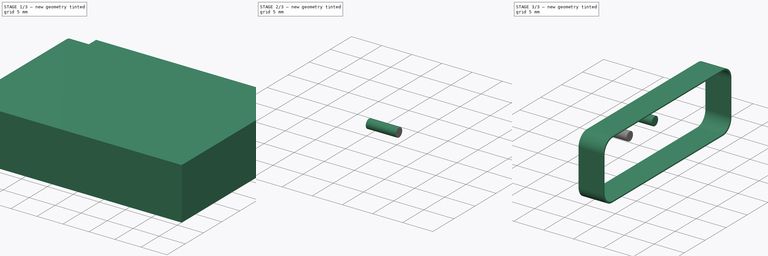
[diagram: build sequence overview — one tinted view per stage of 3, left to right]
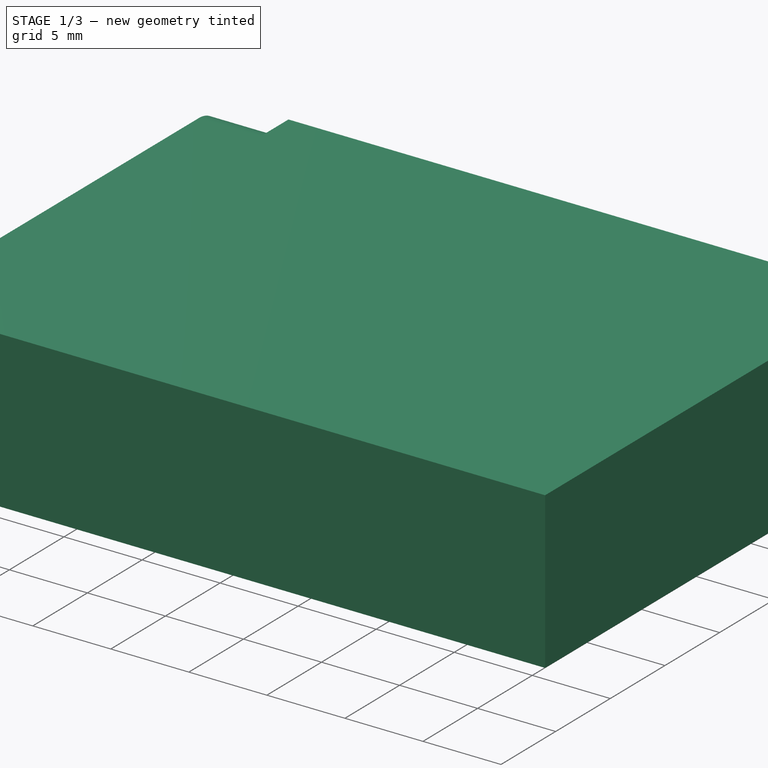
[diagram: stage 1 of 3 — iso view after this stage's code; geometry added in this stage tinted green]
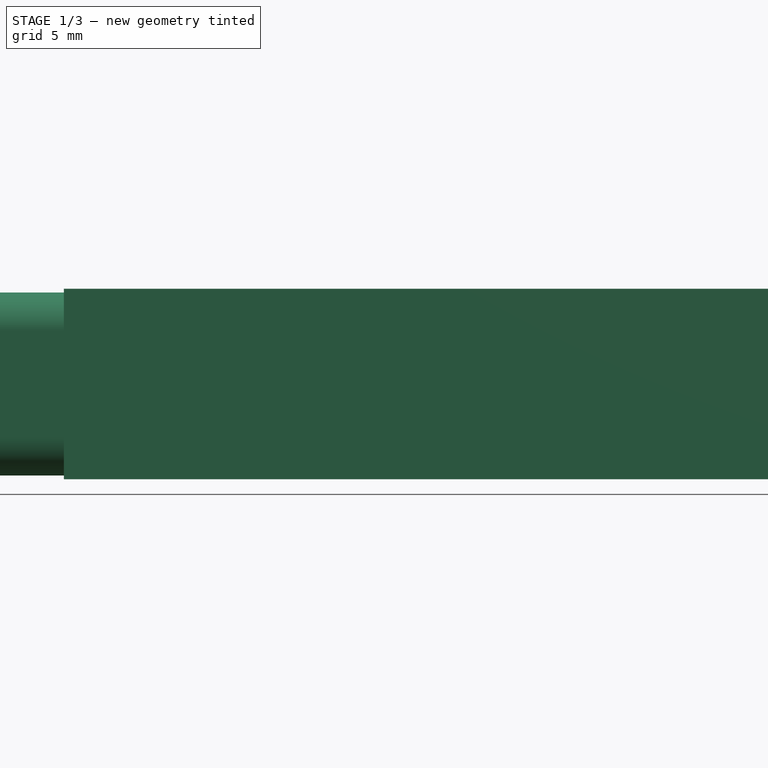
[diagram: stage 1 of 3 — front view after this stage's code; geometry added in this stage tinted green]
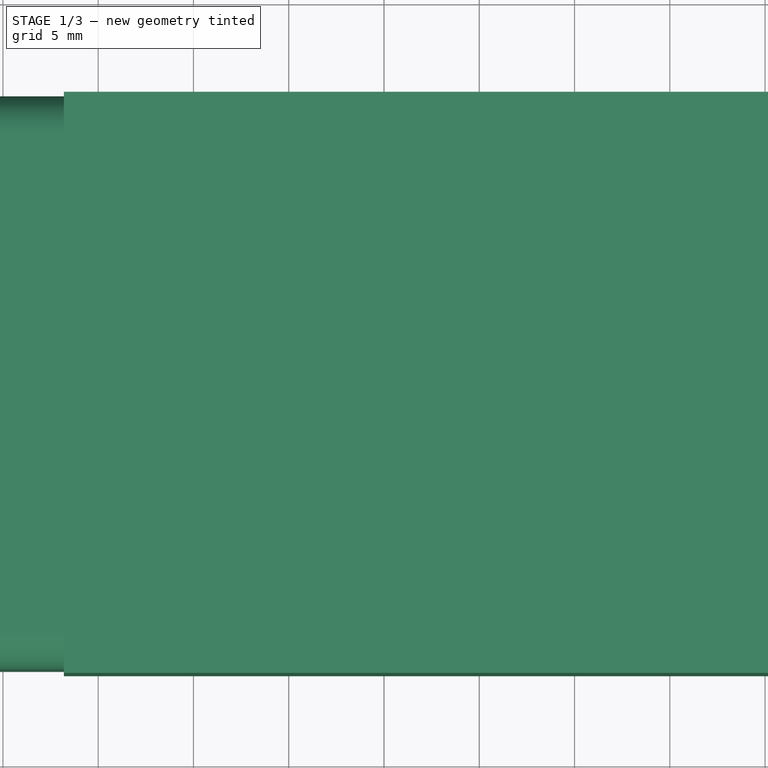
[diagram: stage 1 of 3 — top view after this stage's code; geometry added in this stage tinted green]
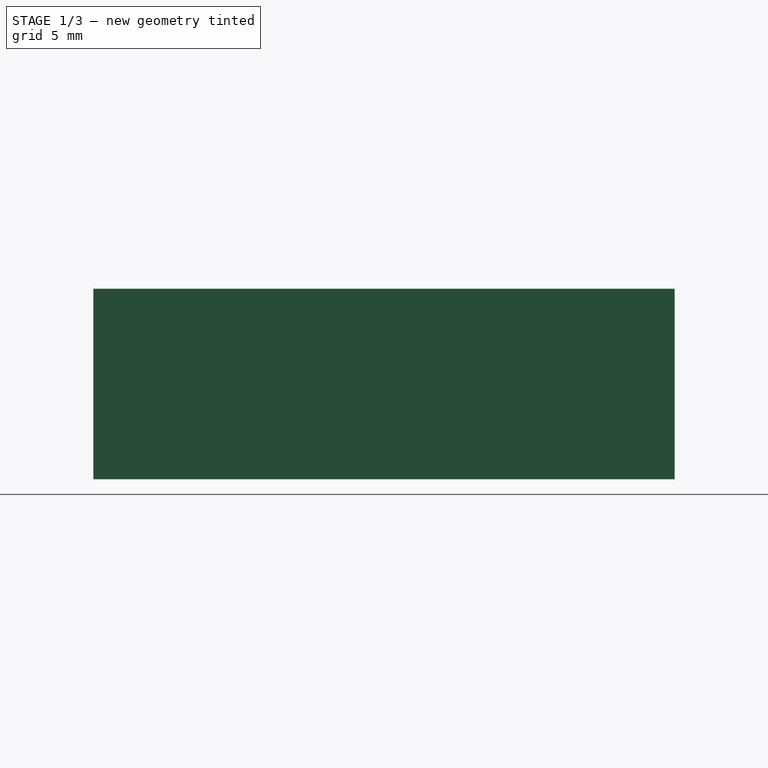
[diagram: stage 1 of 3 — right view after this stage's code; geometry added in this stage tinted green]
FCSTD DOCUMENT  (FreeCAD 0.21R30694 (Git))
Label: Parametric_LiPo
Comment: Don't forget to share your models
License: Creative Commons Attribution
LicenseURL: http://creativecommons.org/licenses/by/4.0/
objects: Sketcher::SketchObject×5, PartDesign::Pad×4, PartDesign::Body×4, PartDesign::ShapeBinder×3, PartDesign::Plane×3, Spreadsheet::Sheet×1, PartDesign::Pocket×1, PartDesign::Fillet×1, App::Part×1
note: 27 computed .brp shape members not serialized (recipe doc carries the construction recipe); baked Part::Feature solids carry a one-line shape summary decoded from their .brp

FEATURE [Spreadsheet::Sheet] Spreadsheet  label="Parameters"
  cells = A1=Collection of some sizes of rectangular LiPo batteries; A2=Data from: local supplier; A5=Configuration table; B5=Length; C5=Wide; D5=Height; E5=Round; F5=Celofan; A6==hiddenref(Part.Capacity.String); B6(LiPoLength)==.B12; C6(LiPoWide)==.C12; D6(LiPoHeight)==.D12; E6(LiPoRound)==.E12; F6(LiPoCelofan)==.F12; A7=130mAh; B7=32; C7=15.5; D7=3.5; E7==0.2 * D7; F7==0.1 * B7; A8=250mAh; B8=32; C8=20.5; D8=5; E8==0.2 * D8; F8==0.1 * B8; A9=400mAh; B9=37; C9=20.5; D9=6; E9==0.2 * D9; F9==0.1 * B9; A10=650mAh; B10=42; C10=20.5; D10=8; E10==0.2 * D10; F10==0.1 * B10; A11=1000mAh; B11=52; C11=34.5; D11=5; E11==0.2 * D11; F11==0.1 * B11; A12=1200mAh; B12=42; C12=30.5; D12=10; E12==0.2 * D12; F12==0.1 * B12; A13=1500mAh; B13=52; C13=30.5; D13=10; E13==0.2 * D13; F13==0.1 * B13; A14=2000mAh; B14=97.5; C14=33.5; D14=5; E14==0.2 * D14; F14==0.1 * B14; A15=2500mAh; B15=52; C15=40.5; D15=10; E15==0.2 * D15; F15==0.1 * B15; A16=4000mAh; B16=93; C16=60.5; D16=6; E16==0.2 * D16; F16==0.1 * B16; A17=5000mAh; B17=103; C17=60.5; D17=6; E17==0.2 * D17; F17==0.1 * B17
  expr: .cells.Bind.B6.F6 = tuple(.cells; <<B>> + str(hiddenref(Part.Capacity) + 7); <<F>> + str(hiddenref(Part.Capacity) + 7))
FEATURE [Sketcher::SketchObject] Sketch
  FullyConstrained = true
  MapMode = 5
  Support = -> [XY_Plane001]
  expr: Constraints[10] = <<Parameters>>.LiPoLength
  expr: Constraints[11] = <<Parameters>>.LiPoWide
  sketch-geometry (5):
    g0: LineSegment StartX=-21 StartY=15.25 StartZ=0 EndX=-21 EndY=-15.25 EndZ=0
    g1: LineSegment StartX=-21 StartY=-15.25 StartZ=0 EndX=21 EndY=-15.25 EndZ=0
    g2: LineSegment StartX=21 StartY=-15.25 StartZ=0 EndX=21 EndY=15.25 EndZ=0
    g3: LineSegment StartX=21 StartY=15.25 StartZ=0 EndX=-21 EndY=15.25 EndZ=0
    g4: GeomPoint X=0 Y=0 Z=0
  constraints (12):
    c: Coincident(g0,g1)
    c: Coincident(g1,g2)
    c: Coincident(g2,g3)
    c: Coincident(g3,g0)
    c: Horizontal(g1)
    c: Horizontal(g3)
    c: Vertical(g0)
    c: Vertical(g2)
    c: Symmetric(g1,g0,g4)
    c: Coincident(g4,g-1)
    c: DistanceX(g3,g3) = 42
    c: DistanceY(g2,g2) = 30.5
FEATURE [PartDesign::Pad] Pad
  Direction = (0,0,1)
  Length = 10
  Length2 = 100
  Midplane = true
  Profile = -> Sketch
  Type = 0
  expr: Length = <<Parameters>>.LiPoHeight
FEATURE [Sketcher::SketchObject] Sketch001
  ExternalGeometry = -> [Pad]
  FullyConstrained = true
  MapMode = 5
  Placement = pos=(-21,0,0) rot=(0.57735,-0.57735,-0.57735;2.0944rad)
  Support = -> [Pad]
  expr: Constraints[37] = <<Parameters>>.LiPoRound
  sketch-geometry (16):
    g0: LineSegment StartX=-15.25 StartY=5 StartZ=0 EndX=15.25 EndY=5 EndZ=0
    g1: LineSegment StartX=15.25 StartY=5 StartZ=0 EndX=15.25 EndY=-5 EndZ=0
    g2: LineSegment StartX=15.25 StartY=-5 StartZ=0 EndX=-15.25 EndY=-5 EndZ=0
    g3: LineSegment StartX=-15.25 StartY=-5 StartZ=0 EndX=-15.25 EndY=5 EndZ=0
    g4: LineSegment StartX=-13.05 StartY=4.8 StartZ=0 EndX=13.05 EndY=4.8 EndZ=0
    g5: LineSegment StartX=15.05 StartY=2.8 StartZ=0 EndX=15.05 EndY=-2.8 EndZ=0
    g6: LineSegment StartX=13.05 StartY=-4.8 StartZ=0 EndX=-13.05 EndY=-4.8 EndZ=0
    g7: LineSegment StartX=-15.05 StartY=-2.8 StartZ=0 EndX=-15.05 EndY=2.8 EndZ=0
    g8: ArcOfCircle CenterX=13.05 CenterY=2.8 CenterZ=0 NormalX=0 NormalY=0 NormalZ=1 AngleXU=0 Radius=2 StartAngle=0 EndAngle=1.5708
    g9: GeomPoint X=15.05 Y=4.8 Z=0
    g10: ArcOfCircle CenterX=-13.05 CenterY=2.8 CenterZ=0 NormalX=0 NormalY=0 NormalZ=1 AngleXU=0 Radius=2 StartAngle=1.5708 EndAngle=3.14159
    g11: GeomPoint X=-15.05 Y=4.8 Z=0
    g12: ArcOfCircle CenterX=-13.05 CenterY=-2.8 CenterZ=0 NormalX=0 NormalY=0 NormalZ=1 AngleXU=0 Radius=2 StartAngle=3.14159 EndAngle=4.71239
    g13: GeomPoint X=-15.05 Y=-4.8 Z=0
    g14: ArcOfCircle CenterX=13.05 CenterY=-2.8 CenterZ=0 NormalX=0 NormalY=0 NormalZ=1 AngleXU=0 Radius=2 StartAngle=4.71239 EndAngle=6.28319
    g15: GeomPoint X=15.05 Y=-4.8 Z=0
  constraints (38):
    c: Coincident(g0,g1)
    c: Coincident(g1,g2)
    c: Coincident(g2,g3)
    c: Coincident(g3,g0)
    c: Horizontal(g0)
    c: Horizontal(g2)
    c: Vertical(g1)
    c: Vertical(g3)
    c: Coincident(g0,g-3)
    c: Coincident(g1,g-4)
    c: Horizontal(g4)
    c: Horizontal(g6)
    c: Vertical(g5)
    c: Vertical(g7)
    c: DistanceX(g0,g11) = 0.2
    c: DistanceY(g2,g13) = 0.2
    c: DistanceY(g9,g0) = 0.2
    c: DistanceX(g15,g1) = 0.2
    c: PointOnObject(g9,g4)
    c: PointOnObject(g9,g5)
    c: Tangent(g4,g8) = 1.5708
    c: Tangent(g5,g8) = 1.5708
    c: PointOnObject(g11,g4)
    c: PointOnObject(g11,g7)
    c: Tangent(g4,g10) = 1.5708
    c: Tangent(g7,g10) = 1.5708
    c: PointOnObject(g13,g6)
    c: PointOnObject(g13,g7)
    c: Tangent(g6,g12) = 1.5708
    c: Tangent(g7,g12) = 1.5708
    c: PointOnObject(g15,g5)
    c: PointOnObject(g15,g6)
    c: Tangent(g5,g14) = 1.5708
    c: Tangent(g6,g14) = 1.5708
    c: Equal(g10,g12)
    c: Equal(g12,g8)
    c: Equal(g8,g14)
    c: Radius(g8) = 2
FEATURE [PartDesign::Pocket] Pocket
  BaseFeature = -> Pad
  Direction = (1,0,0)
  Length = 4.2
  Length2 = 100
  Profile = -> Sketch001
  Type = 0
  expr: Length = <<Parameters>>.LiPoCelofan
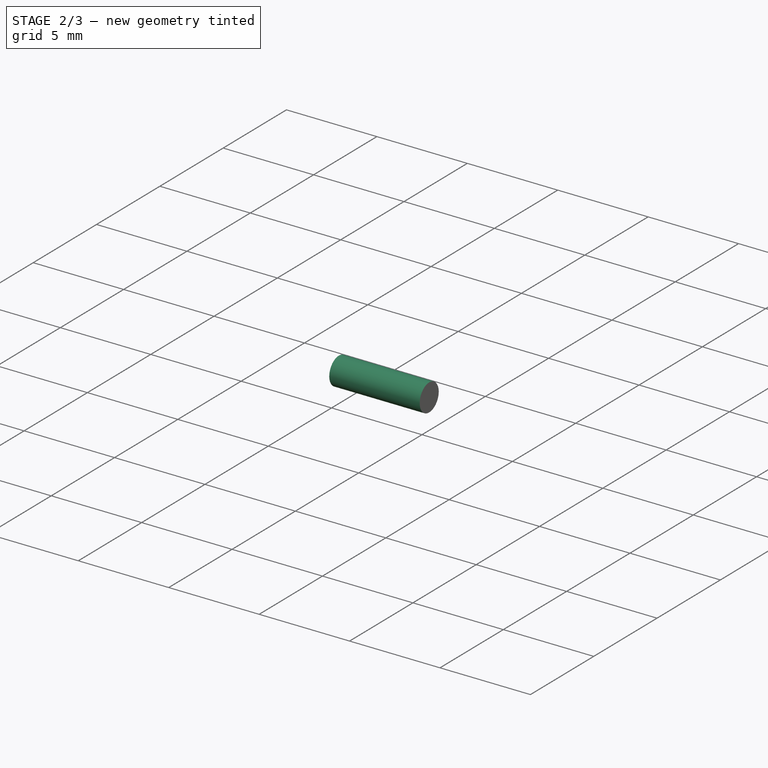
[diagram: stage 2 of 3 — iso view after this stage's code; geometry added in this stage tinted green]
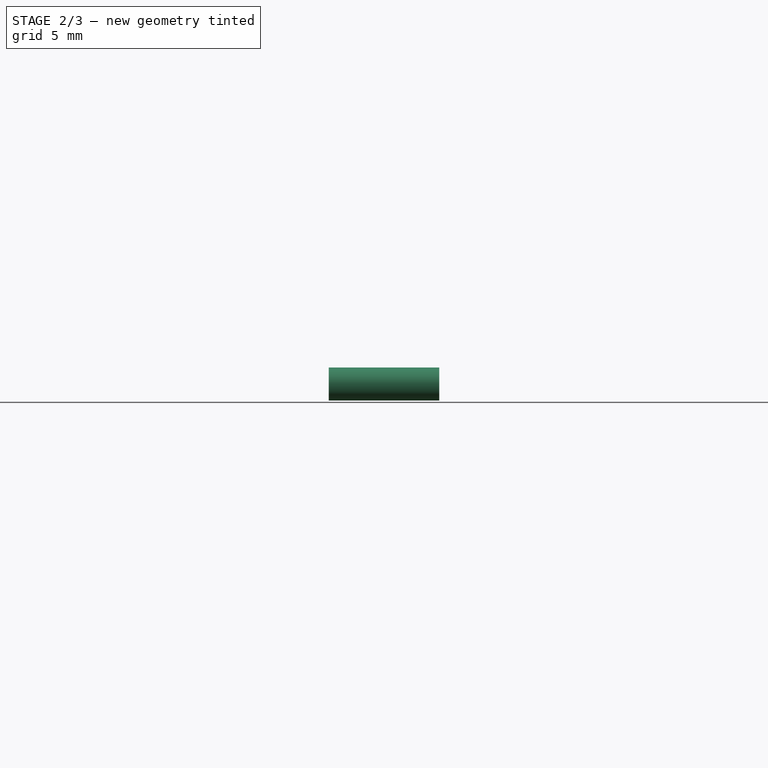
[diagram: stage 2 of 3 — front view after this stage's code; geometry added in this stage tinted green]
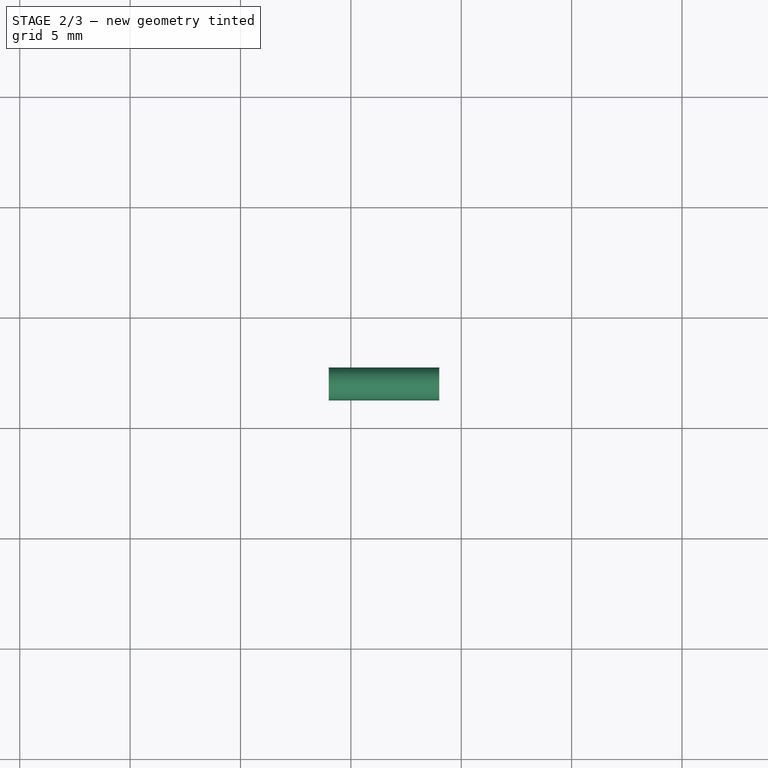
[diagram: stage 2 of 3 — top view after this stage's code; geometry added in this stage tinted green]
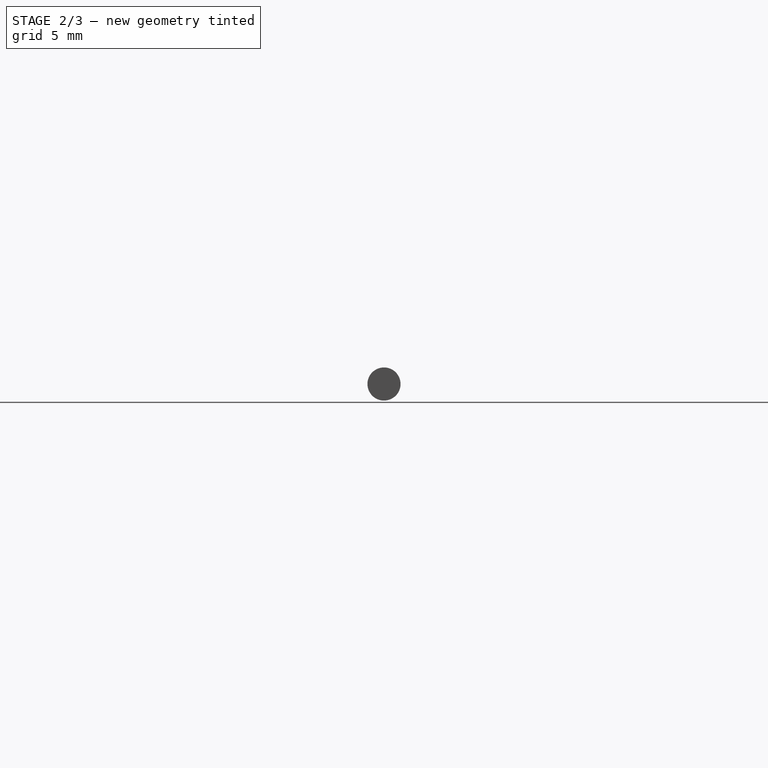
[diagram: stage 2 of 3 — right view after this stage's code; geometry added in this stage tinted green]
FEATURE [PartDesign::Body] Body001  label="Celofan"
  Group = -> [DatumPlane,ReferencePocket,Sketch002,Pad001]
  Origin = -> Origin002
  Tip = -> Pad001
FEATURE [PartDesign::Fillet] Fillet
  Base = -> Pocket [Edge32,Edge34,Edge29,Edge31,Edge30,Edge33,Edge35,Edge36]
  BaseFeature = -> Pocket
  Radius = 2
  SupportTransform = false
  UseAllEdges = false
  expr: Radius = <<Parameters>>.LiPoRound
FEATURE [PartDesign::Body] Body002  label="Plus"
  Group = -> [DatumPlane001,ReferenceFillet,Sketch003,Pad002]
  Origin = -> Origin003
  Tip = -> Pad002
FEATURE [PartDesign::ShapeBinder] ReferenceFillet001
  Support = -> [Fillet]
  TraceSupport = false
FEATURE [PartDesign::Plane] DatumPlane002
  Length = 60
  MapMode = 5
  Placement = pos=(-21,0,0) rot=(0.57735,-0.57735,-0.57735;2.0944rad)
  ResizeMode = 0
  Support = -> [ReferenceFillet001]
  Width = 60
FEATURE [Sketcher::SketchObject] Sketch004
  FullyConstrained = true
  MapMode = 5
  Placement = pos=(-21,0,0) rot=(0.57735,-0.57735,-0.57735;2.0944rad)
  Support = -> [DatumPlane002]
  sketch-geometry (1):
    g0: Circle CenterX=3 CenterY=0 CenterZ=0 NormalX=0 NormalY=0 NormalZ=1 AngleXU=0 Radius=0.75
  constraints (3):
    c: PointOnObject(g0,g-1)
    c: Diameter(g0) = 1.5
    c: DistanceX(g-1,g0) = 3
FEATURE [PartDesign::Pad] Pad003
  Direction = (-1,0,0)
  Length = 5
  Length2 = 100
  Placement = pos=(-21,0,0) rot=(0.57735,-0.57735,-0.57735;2.0944rad)
  Profile = -> Sketch004
  Type = 0
FEATURE [PartDesign::Body] Body003  label="Minus"
  Group = -> [DatumPlane002,ReferenceFillet001,Sketch004,Pad003]
  Origin = -> Origin004
  Tip = -> Pad003
FEATURE [App::Part] Part  label="LiPo battery"
  Capacity = 5
  Group = -> [Body,Body001,Body002,Body003]
  Origin = -> Origin
  Placement = pos=(0,0,0) rot=(0,0,1;1.5708rad)
  expr: .Capacity.Enum = Spreadsheet.cells[<<A7:|>>]
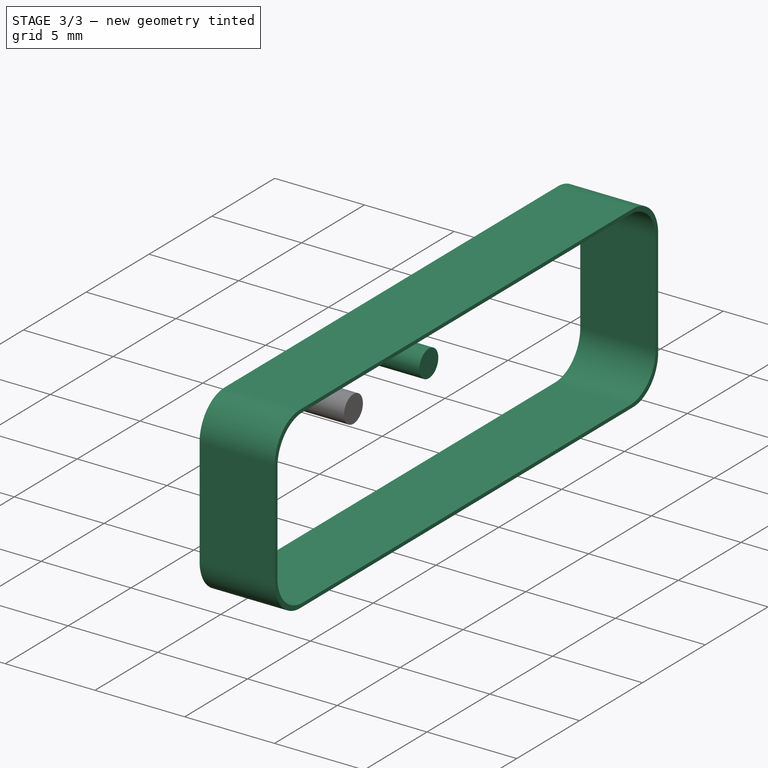
[diagram: stage 3 of 3 — iso view after this stage's code; geometry added in this stage tinted green]
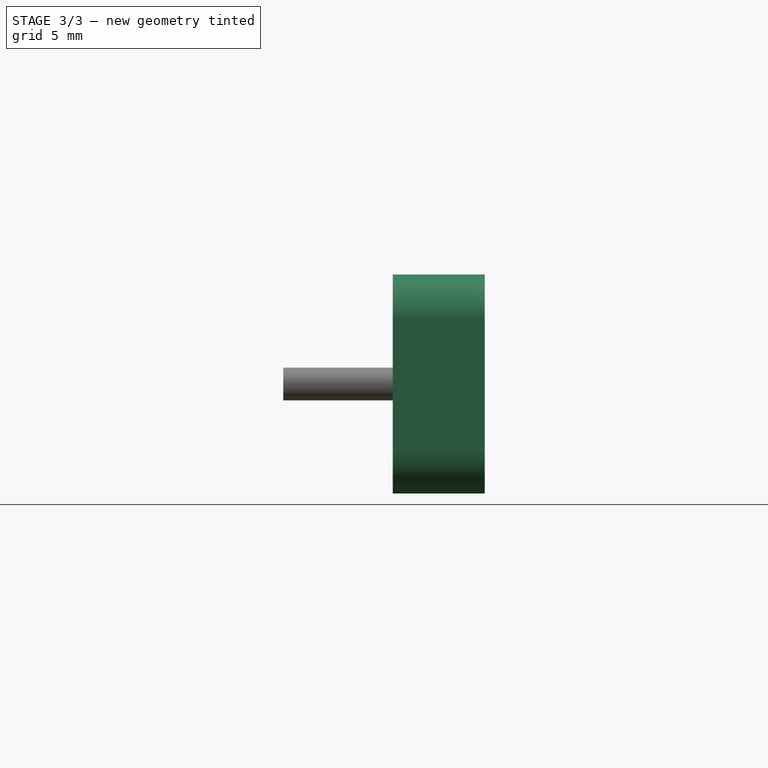
[diagram: stage 3 of 3 — front view after this stage's code; geometry added in this stage tinted green]
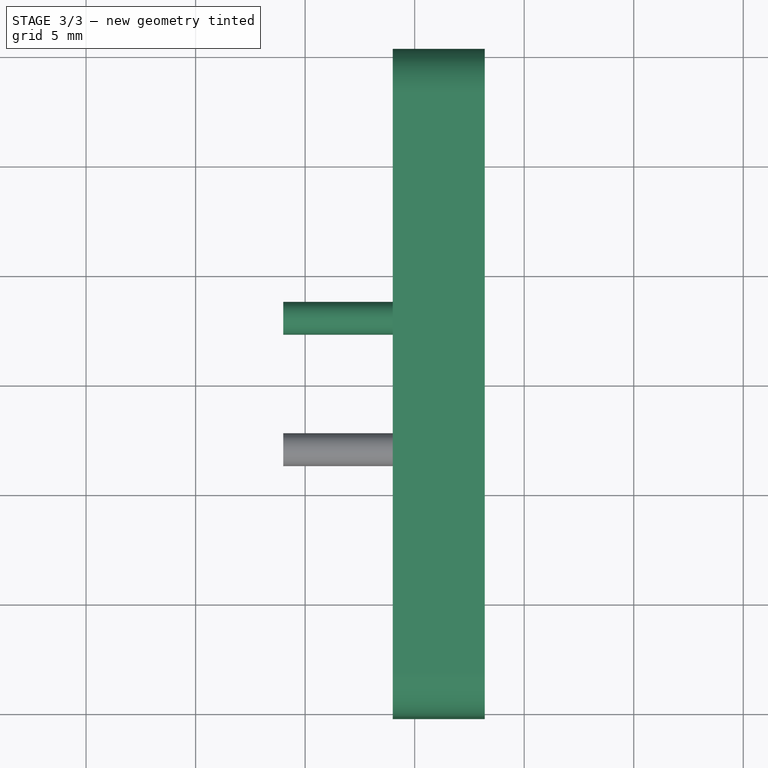
[diagram: stage 3 of 3 — top view after this stage's code; geometry added in this stage tinted green]
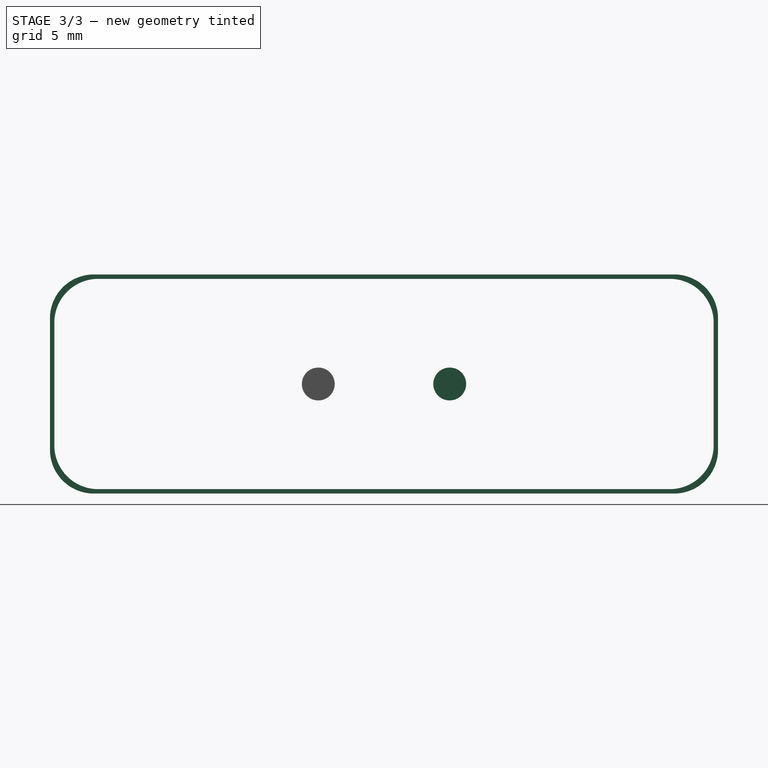
[diagram: stage 3 of 3 — right view after this stage's code; geometry added in this stage tinted green]
FEATURE [PartDesign::ShapeBinder] ReferencePocket
  Support = -> [Pocket]
  TraceSupport = false
FEATURE [PartDesign::Plane] DatumPlane
  AttachmentOffset = pos=(0,0,-4.2) rot=(0,0,1;0rad)
  Length = 60
  MapMode = 5
  Placement = pos=(-16.8,0,0) rot=(0.57735,-0.57735,-0.57735;2.0944rad)
  ResizeMode = 0
  Support = -> [ReferencePocket]
  Width = 60
  expr: .AttachmentOffset.Base.z = -<<Parameters>>.LiPoCelofan
FEATURE [Sketcher::SketchObject] Sketch002
  FullyConstrained = true
  MapMode = 5
  Placement = pos=(-16.8,0,0) rot=(0.57735,-0.57735,-0.57735;2.0944rad)
  Support = -> [DatumPlane]
  expr: Constraints[12] = <<Parameters>>.LiPoHeight - 0.2 * 2
  expr: Constraints[13] = <<Parameters>>.LiPoHeight
  expr: Constraints[14] = <<Parameters>>.LiPoWide
  expr: Constraints[15] = <<Parameters>>.LiPoWide - 0.2 * 2
  expr: Constraints[35] = <<Parameters>>.LiPoRound
  sketch-geometry (26):
    g0: LineSegment StartX=-15.05 StartY=2.8 StartZ=0 EndX=-15.05 EndY=-2.8 EndZ=0
    g1: LineSegment StartX=-13.05 StartY=-4.8 StartZ=0 EndX=13.05 EndY=-4.8 EndZ=0
    g2: LineSegment StartX=15.05 StartY=-2.8 StartZ=0 EndX=15.05 EndY=2.8 EndZ=0
    g3: LineSegment StartX=13.05 StartY=4.8 StartZ=0 EndX=-13.05 EndY=4.8 EndZ=0
    g4: GeomPoint X=0 Y=0 Z=0
    g5: LineSegment StartX=-15.25 StartY=3 StartZ=0 EndX=-15.25 EndY=-3 EndZ=0
    g6: LineSegment StartX=-13.25 StartY=-5 StartZ=0 EndX=13.25 EndY=-5 EndZ=0
    g7: LineSegment StartX=15.25 StartY=-3 StartZ=0 EndX=15.25 EndY=3 EndZ=0
    g8: LineSegment StartX=13.25 StartY=5 StartZ=0 EndX=-13.25 EndY=5 EndZ=0
    g9: GeomPoint X=0 Y=0 Z=0
    g10: ArcOfCircle CenterX=-13.05 CenterY=2.8 CenterZ=0 NormalX=0 NormalY=0 NormalZ=1 AngleXU=0 Radius=2 StartAngle=1.5708 EndAngle=3.14159
    g11: GeomPoint X=-15.05 Y=4.8 Z=0
    g12: ArcOfCircle CenterX=-13.05 CenterY=-2.8 CenterZ=0 NormalX=0 NormalY=0 NormalZ=1 AngleXU=0 Radius=2 StartAngle=3.14159 EndAngle=4.71239
    g13: GeomPoint X=-15.05 Y=-4.8 Z=0
    g14: ArcOfCircle CenterX=13.05 CenterY=-2.8 CenterZ=0 NormalX=0 NormalY=0 NormalZ=1 AngleXU=0 Radius=2 StartAngle=4.71239 EndAngle=6.28319
    g15: GeomPoint X=15.05 Y=-4.8 Z=0
    g16: ArcOfCircle CenterX=13.05 CenterY=2.8 CenterZ=0 NormalX=0 NormalY=0 NormalZ=1 AngleXU=0 Radius=2 StartAngle=0 EndAngle=1.5708
    g17: GeomPoint X=15.05 Y=4.8 Z=0
    g18: ArcOfCircle CenterX=-13.25 CenterY=3 CenterZ=0 NormalX=0 NormalY=0 NormalZ=1 AngleXU=0 Radius=2 StartAngle=1.5708 EndAngle=3.14159
    g19: GeomPoint X=-15.25 Y=5 Z=0
    g20: ArcOfCircle CenterX=-13.25 CenterY=-3 CenterZ=0 NormalX=0 NormalY=0 NormalZ=1 AngleXU=0 Radius=2 StartAngle=3.14159 EndAngle=4.71239
    g21: GeomPoint X=-15.25 Y=-5 Z=0
    g22: ArcOfCircle CenterX=13.25 CenterY=-3 CenterZ=0 NormalX=0 NormalY=0 NormalZ=1 AngleXU=0 Radius=2 StartAngle=4.71239 EndAngle=6.28319
    g23: GeomPoint X=15.25 Y=-5 Z=0
    g24: ArcOfCircle CenterX=13.25 CenterY=3 CenterZ=0 NormalX=0 NormalY=0 NormalZ=1 AngleXU=0 Radius=2 StartAngle=0 EndAngle=1.5708
    g25: GeomPoint X=15.25 Y=5 Z=0
  constraints (56):
    c: Horizontal(g1)
    c: Horizontal(g3)
    c: Vertical(g0)
    c: Vertical(g2)
    c: Symmetric(g15,g11,g4)
    c: Coincident(g4,g-1)
    c: Horizontal(g6)
    c: Horizontal(g8)
    c: Vertical(g5)
    c: Vertical(g7)
    c: Symmetric(g23,g19,g9)
    c: Coincident(g9,g4)
    c: DistanceY(g15,g17) = 9.6
    c: DistanceY(g23,g25) = 10
    c: DistanceX(g19,g25) = 30.5
    c: DistanceX(g11,g17) = 30.1
    c: PointOnObject(g11,g0)
    c: PointOnObject(g11,g3)
    c: Tangent(g0,g10) = -1.5708
    c: Tangent(g3,g10) = -1.5708
    c: PointOnObject(g13,g0)
    c: PointOnObject(g13,g1)
    c: Tangent(g0,g12) = -1.5708
    c: Tangent(g1,g12) = -1.5708
    c: PointOnObject(g15,g1)
    c: PointOnObject(g15,g2)
    c: Tangent(g1,g14) = -1.5708
    c: Tangent(g2,g14) = -1.5708
    c: PointOnObject(g17,g2)
    c: PointOnObject(g17,g3)
    c: Tangent(g2,g16) = -1.5708
    c: Tangent(g3,g16) = -1.5708
    c: Equal(g16,g10)
    c: Equal(g10,g12)
    c: Equal(g12,g14)
    c: Radius(g16) = 2
    c: PointOnObject(g19,g5)
    c: PointOnObject(g19,g8)
    c: Tangent(g5,g18) = -1.5708
    c: Tangent(g8,g18) = -1.5708
    c: Equal(g10,g18)
    c: PointOnObject(g21,g5)
    c: PointOnObject(g21,g6)
    c: Tangent(g5,g20) = -1.5708
    c: Tangent(g6,g20) = -1.5708
    c: Equal(g12,g20)
    c: PointOnObject(g23,g6)
    c: PointOnObject(g23,g7)
    c: Tangent(g6,g22) = -1.5708
    c: Tangent(g7,g22) = -1.5708
    c: Equal(g22,g14)
    c: PointOnObject(g25,g7)
    c: PointOnObject(g25,g8)
    c: Tangent(g7,g24) = -1.5708
    c: Tangent(g8,g24) = -1.5708
    c: Equal(g24,g16)
FEATURE [PartDesign::Pad] Pad001
  Direction = (-1,0,0)
  Length = 4.2
  Length2 = 100
  Placement = pos=(-16.8,0,0) rot=(0.57735,-0.57735,-0.57735;2.0944rad)
  Profile = -> Sketch002
  Type = 0
  expr: Length = <<Parameters>>.LiPoCelofan
FEATURE [PartDesign::Body] Body  label="Battery"
  Group = -> [Sketch,Pad,Sketch001,Pocket,Fillet]
  Origin = -> Origin001
  Tip = -> Fillet
FEATURE [PartDesign::ShapeBinder] ReferenceFillet
  Support = -> [Fillet]
  TraceSupport = false
FEATURE [PartDesign::Plane] DatumPlane001
  Length = 60
  MapMode = 5
  Placement = pos=(-21,0,0) rot=(0.57735,-0.57735,-0.57735;2.0944rad)
  ResizeMode = 0
  Support = -> [ReferenceFillet]
  Width = 60
FEATURE [Sketcher::SketchObject] Sketch003
  FullyConstrained = true
  MapMode = 5
  Placement = pos=(-21,0,0) rot=(0.57735,-0.57735,-0.57735;2.0944rad)
  Support = -> [DatumPlane001]
  sketch-geometry (1):
    g0: Circle CenterX=-3 CenterY=0 CenterZ=0 NormalX=0 NormalY=0 NormalZ=1 AngleXU=0 Radius=0.75
  constraints (3):
    c: Diameter(g0) = 1.5
    c: PointOnObject(g0,g-1)
    c: DistanceX(g0,g-1) = 3
FEATURE [PartDesign::Pad] Pad002
  Direction = (-1,0,0)
  Length = 5
  Length2 = 100
  Placement = pos=(-21,0,0) rot=(0.57735,-0.57735,-0.57735;2.0944rad)
  Profile = -> Sketch003
  Type = 0
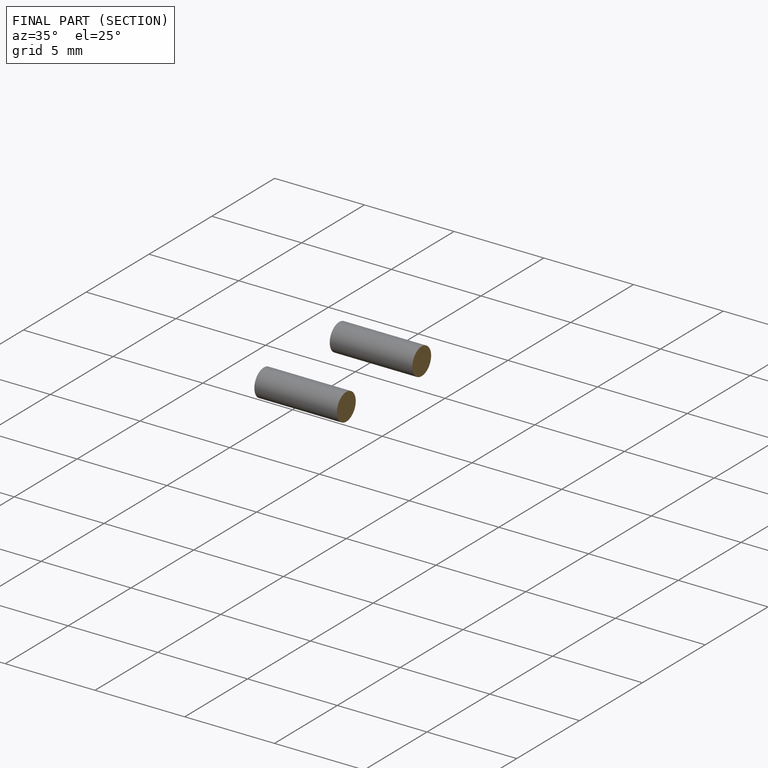
[diagram: finished part — half-section view (interior)]
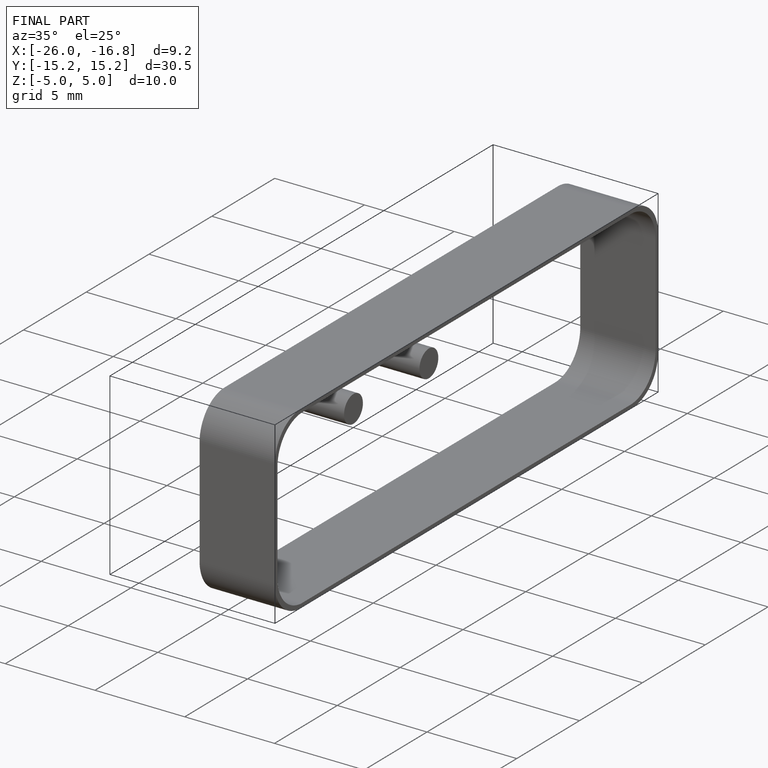
[diagram: finished part — iso view with bounding-box wireframe]
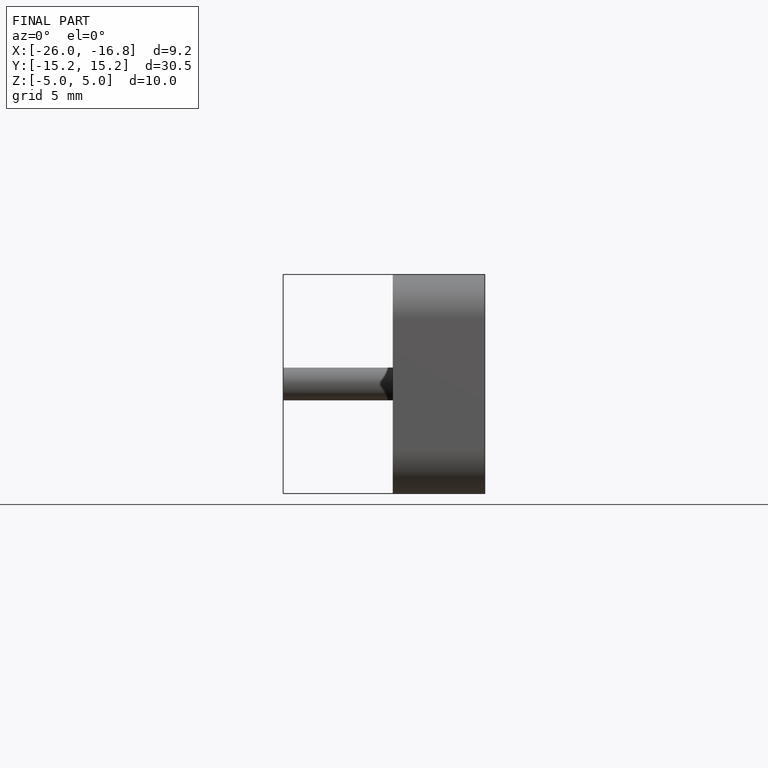
[diagram: finished part — front view with bounding-box wireframe]
